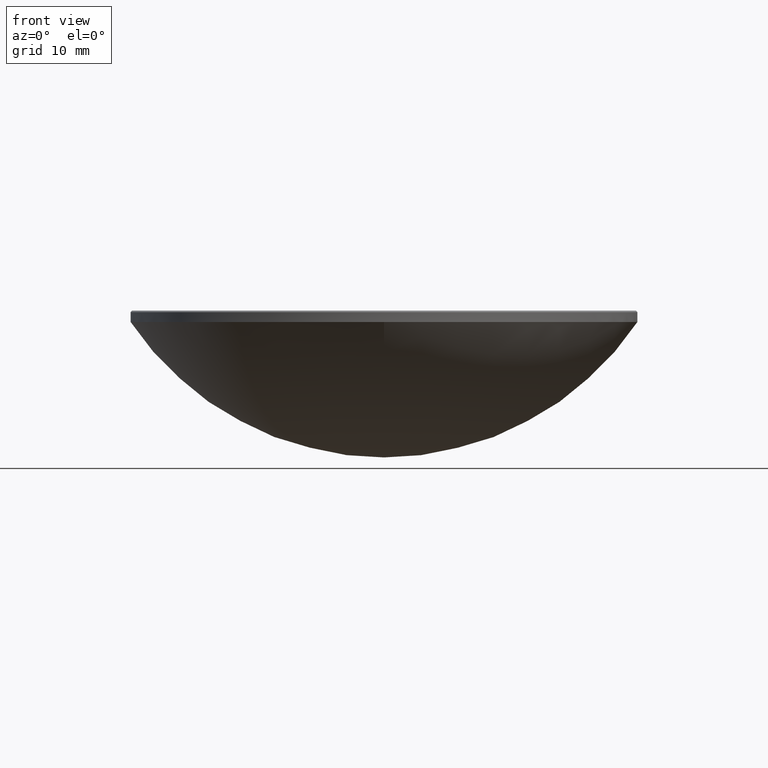
[diagram: clean part render]
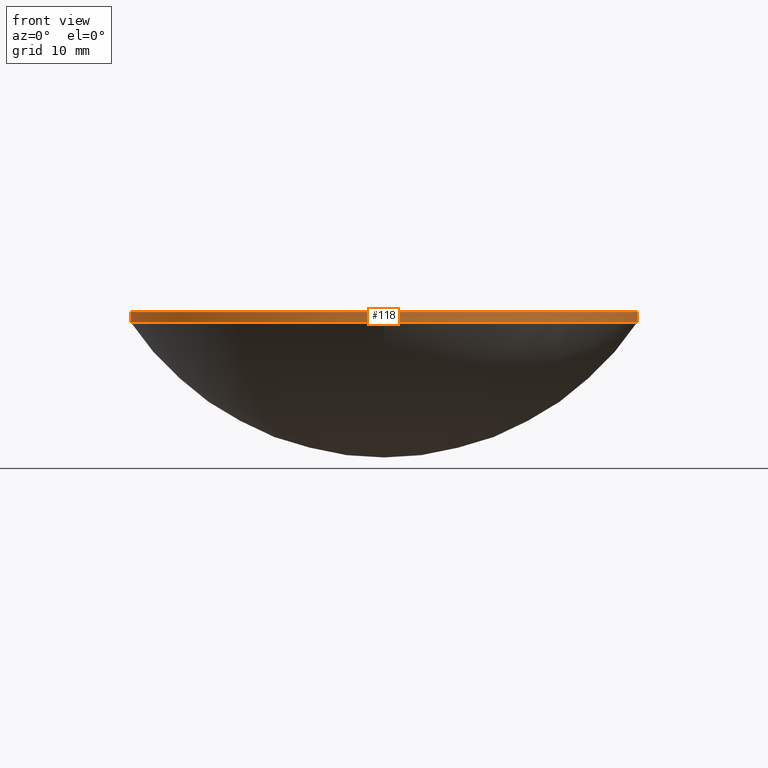
[diagram: same view with one face highlighted and labeled with its STEP entity id]
A machine part, front view. The second image highlights one B-rep face of the part: STEP entity #118.
In plain terms, the highlighted cylindrical surface (partial cylindrical patch) has radius 25.4 mm, axis along (-0, -0, -1).
Its self-contained STEP definition (entity closure, byte-faithful):
#20 = VERTEX_POINT ( 'NONE', #47 ) ;
#27 = EDGE_CURVE ( 'NONE', #256, #20, #247, .T. ) ;
#33 = DIRECTION ( 'NONE',  ( 0.000000000000000000, 0.000000000000000000, -1.000000000000000000 ) ) ;
#41 = CARTESIAN_POINT ( 'NONE',  ( 0.000000000000000000, 0.000000000000000000, 15.00000000000000000 ) ) ;
#44 = DIRECTION ( 'NONE',  ( 1.000000000000000000, 0.000000000000000000, 0.000000000000000000 ) ) ;
#47 = CARTESIAN_POINT ( 'NONE',  ( 25.39999999999999503, 3.110602869834276471E-15, 15.00000000000000000 ) ) ;
#49 = AXIS2_PLACEMENT_3D ( 'NONE', #51, #83, #198 ) ;
#51 = CARTESIAN_POINT ( 'NONE',  ( 0.000000000000000000, 0.000000000000000000, 20.00000000000000000 ) ) ;
#59 = VERTEX_POINT ( 'NONE', #226 ) ;
#77 = CIRCLE ( 'NONE', #153, 25.39999999999999503 ) ;
#81 = ORIENTED_EDGE ( 'NONE', *, *, #258, .T. ) ;
#83 = DIRECTION ( 'NONE',  ( -0.000000000000000000, -0.000000000000000000, -1.000000000000000000 ) ) ;
#94 = DIRECTION ( 'NONE',  ( 1.000000000000000000, 0.000000000000000000, 0.000000000000000000 ) ) ;
#95 = LINE ( 'NONE', #165, #148 ) ;
#103 = ORIENTED_EDGE ( 'NONE', *, *, #156, .T. ) ;
#113 = VERTEX_POINT ( 'NONE', #249 ) ;
#116 = DIRECTION ( 'NONE',  ( -0.000000000000000000, -0.000000000000000000, -1.000000000000000000 ) ) ;
#118 = ADVANCED_FACE ( 'NONE', ( #180 ), #141, .T. ) ;
#124 = AXIS2_PLACEMENT_3D ( 'NONE', #243, #33, #94 ) ;
#127 = CIRCLE ( 'NONE', #206, 25.39999999999999503 ) ;
#132 = DIRECTION ( 'NONE',  ( 1.000000000000000000, 0.000000000000000000, 0.000000000000000000 ) ) ;
#134 = DIRECTION ( 'NONE',  ( -0.000000000000000000, -0.000000000000000000, -1.000000000000000000 ) ) ;
#141 = CYLINDRICAL_SURFACE ( 'NONE', #49, 25.39999999999999858 ) ;
#145 = VERTEX_POINT ( 'NONE', #228 ) ;
#148 = VECTOR ( 'NONE', #116, 1000.000000000000000 ) ;
#150 = ORIENTED_EDGE ( 'NONE', *, *, #178, .T. ) ;
#153 = AXIS2_PLACEMENT_3D ( 'NONE', #41, #181, #132 ) ;
#156 = EDGE_CURVE ( 'NONE', #256, #59, #214, .T. ) ;
#165 = CARTESIAN_POINT ( 'NONE',  ( -25.39999999999999858, 0.000000000000000000, 20.00000000000000000 ) ) ;
#178 = EDGE_CURVE ( 'NONE', #59, #113, #95, .T. ) ;
#180 = FACE_OUTER_BOUND ( 'NONE', #193, .T. ) ;
#181 = DIRECTION ( 'NONE',  ( -0.000000000000000000, -0.000000000000000000, 1.000000000000000000 ) ) ;
#183 = CARTESIAN_POINT ( 'NONE',  ( 25.39999999999999858, 3.110602869834276865E-15, 20.00000000000000000 ) ) ;
#193 = EDGE_LOOP ( 'NONE', ( #233, #103, #150, #278, #81 ) ) ;
#197 = VECTOR ( 'NONE', #134, 1000.000000000000000 ) ;
#198 = DIRECTION ( 'NONE',  ( -1.000000000000000000, 0.000000000000000000, 0.000000000000000000 ) ) ;
#206 = AXIS2_PLACEMENT_3D ( 'NONE', #251, #244, #44 ) ;
#214 = CIRCLE ( 'NONE', #124, 25.39999999999999858 ) ;
#226 = CARTESIAN_POINT ( 'NONE',  ( -25.39999999999999858, 0.000000000000000000, 15.99999999999997335 ) ) ;
#228 = CARTESIAN_POINT ( 'NONE',  ( -3.110602869834276471E-15, -25.39999999999999858, 15.00000000000000178 ) ) ;
#233 = ORIENTED_EDGE ( 'NONE', *, *, #27, .F. ) ;
#243 = CARTESIAN_POINT ( 'NONE',  ( 0.000000000000000000, 0.000000000000000000, 15.99999999999997335 ) ) ;
#244 = DIRECTION ( 'NONE',  ( -0.000000000000000000, -0.000000000000000000, 1.000000000000000000 ) ) ;
#247 = LINE ( 'NONE', #183, #197 ) ;
#249 = CARTESIAN_POINT ( 'NONE',  ( -25.39999999999999503, 0.000000000000000000, 15.00000000000000000 ) ) ;
#251 = CARTESIAN_POINT ( 'NONE',  ( 0.000000000000000000, 0.000000000000000000, 15.00000000000000000 ) ) ;
#256 = VERTEX_POINT ( 'NONE', #271 ) ;
#258 = EDGE_CURVE ( 'NONE', #145, #20, #127, .T. ) ;
#271 = CARTESIAN_POINT ( 'NONE',  ( 25.39999999999999858, 3.110602869834276865E-15, 15.99999999999997335 ) ) ;
#277 = EDGE_CURVE ( 'NONE', #113, #145, #77, .T. ) ;
#278 = ORIENTED_EDGE ( 'NONE', *, *, #277, .T. ) ;